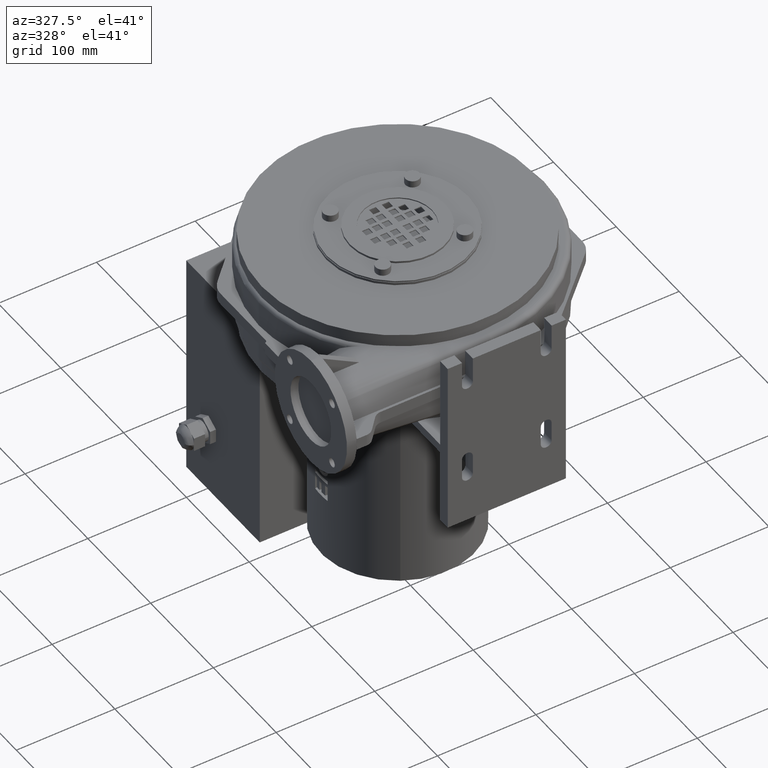
[diagram: clean part render]
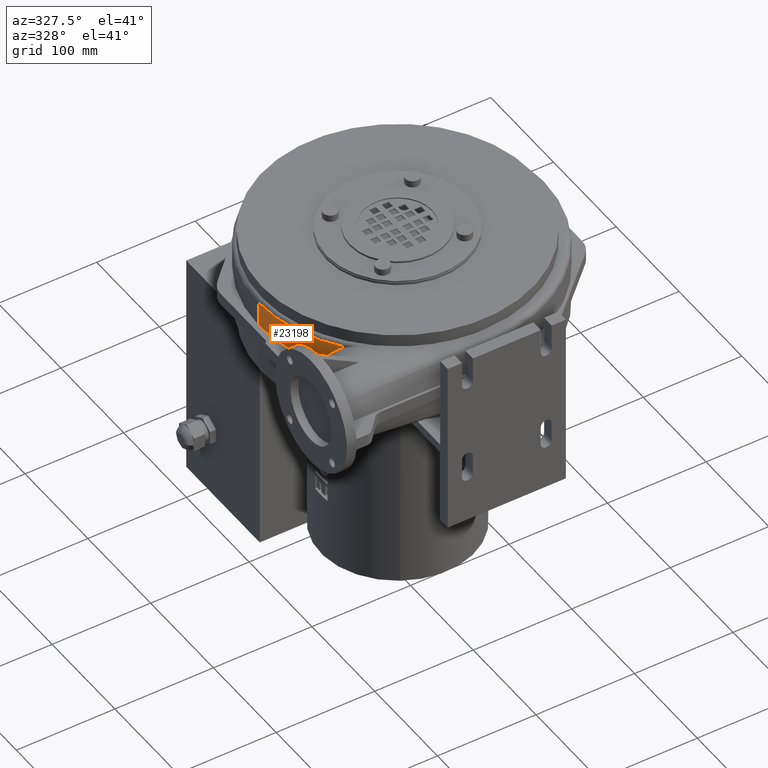
[diagram: same view with one face highlighted and labeled with its STEP entity id]
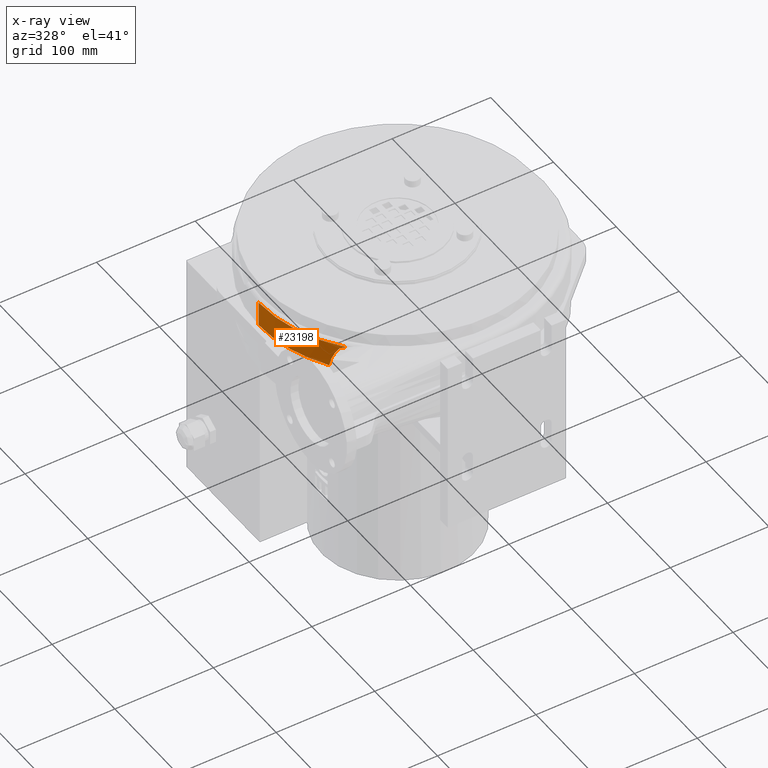
[diagram: x-ray of the same camera — body ghosted, the highlighted face saturated]
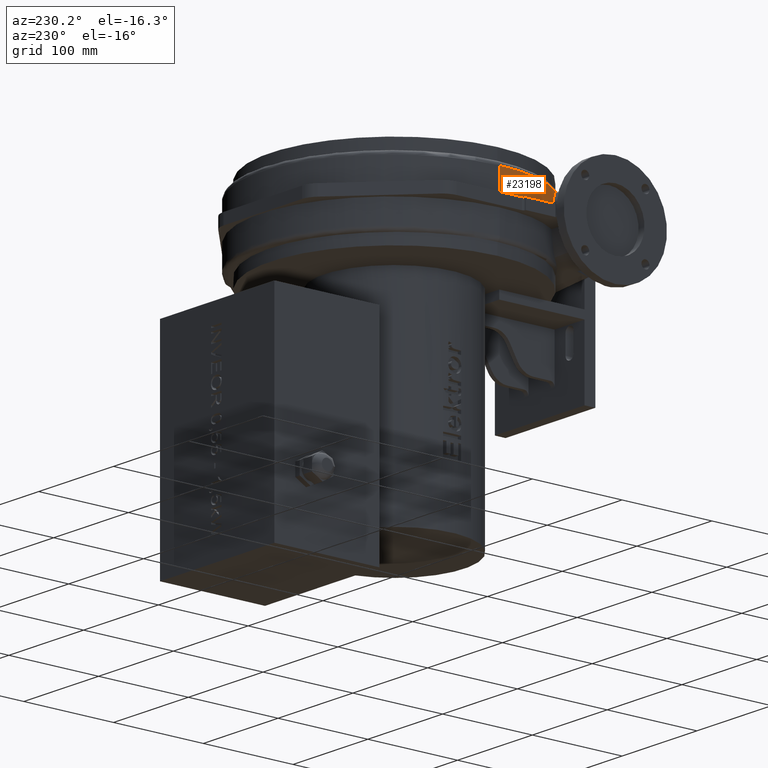
[diagram: same view with one face highlighted and labeled with its STEP entity id]
A machine part, auxiliary view. The second image highlights one B-rep face of the part: STEP entity #23198.
The next image is the same camera in x-ray: the body ghosted, the highlighted face saturated — about 1% of this face is hidden behind the body in this view.
A second angle (auxiliary view) of the same face is appended — the face is thin or edge-on in the first view.
In plain terms, the highlighted cylindrical surface (partial cylindrical patch) has radius 141 mm, axis along (-0, -0, 1).
Its self-contained STEP definition (entity closure, byte-faithful):
#22512=CARTESIAN_POINT('',(-140.99999999999994,120.50000000000009,75.499999999999986));
#22513=VERTEX_POINT('',#22512);
#22546=CARTESIAN_POINT('',(-109.10888931496358,31.19014459503914,75.499999999999986));
#22547=VERTEX_POINT('',#22546);
#22548=CARTESIAN_POINT('',(-6.065097E-015,120.50000000000006,75.5));
#22549=DIRECTION('',(-6.123234E-017,-6.123234E-017,1.0));
#22550=DIRECTION('',(-0.707106781186548,-0.707106781186547,-8.659561E-017));
#22551=AXIS2_PLACEMENT_3D('',#22548,#22549,#22550);
#22552=CIRCLE('',#22551,140.99999999999997);
#22553=EDGE_CURVE('',#22513,#22547,#22552,.T.);
#23116=CARTESIAN_POINT('',(-118.28443662424512,43.755019366183191,49.999999999999986));
#23117=VERTEX_POINT('',#23116);
#23139=CARTESIAN_POINT('',(-112.8247713455813,35.93303853858005,72.607534993733324));
#23140=VERTEX_POINT('',#23139);
#23148=CARTESIAN_POINT('',(-118.28443662424516,43.755019366183177,49.999999999999957));
#23149=CARTESIAN_POINT('',(-118.27142784442083,43.734969883910175,50.17164714293115));
#23150=CARTESIAN_POINT('',(-118.25785201521866,43.714053013321589,50.343274429664831));
#23151=CARTESIAN_POINT('',(-118.24370712188912,43.692270034898584,50.51487780565482));
#23152=CARTESIAN_POINT('',(-117.96980915330222,43.270470209277249,53.837760134371742));
#23153=CARTESIAN_POINT('',(-117.49069454630083,42.53547664289443,57.072049217894815));
#23154=CARTESIAN_POINT('',(-116.8126169381223,41.532596323777526,60.198562296064665));
#23155=CARTESIAN_POINT('',(-116.67393862516693,41.327490375617877,60.837986978260254));
#23156=CARTESIAN_POINT('',(-116.52693825654438,41.111122047307049,61.472914520911431));
#23157=CARTESIAN_POINT('',(-116.37166932810864,40.883995864615002,62.10328809590937));
#23158=CARTESIAN_POINT('',(-115.45446248983099,39.542312824641819,65.827039908216932));
#23159=CARTESIAN_POINT('',(-114.26482346766645,37.854279985502572,69.323182355044835));
#23160=CARTESIAN_POINT('',(-112.82477134558127,35.933038538580064,72.607534993733339));
#23161=B_SPLINE_CURVE_WITH_KNOTS('',3,(#23148,#23149,#23150,#23151,#23152,#23153,#23154,#23155,#23156,#23157,#23158,#23159,#23160),.UNSPECIFIED.,.F.,.U.,(4,3,3,3,4),(4.417819588287765,4.48381965184414,5.761827404433253,6.023201555319949,7.567194683613551),.UNSPECIFIED.);
#23162=EDGE_CURVE('',#23117,#23140,#23161,.T.);
#23167=CARTESIAN_POINT('',(-2.207459E-015,120.50000000000006,43.999999999999993));
#23168=DIRECTION('',(-1.224647E-016,-1.513340E-030,1.0));
#23169=DIRECTION('',(-1.0,0.0,0.0));
#23170=AXIS2_PLACEMENT_3D('',#23167,#23168,#23169);
#23171=CYLINDRICAL_SURFACE('',#23170,141.0);
#23172=CARTESIAN_POINT('',(-140.99999999999994,120.50000000000009,49.999999999999986));
#23173=VERTEX_POINT('',#23172);
#23174=CARTESIAN_POINT('',(-2.942247E-015,120.50000000000006,50.0));
#23175=DIRECTION('',(0.0,0.0,1.0));
#23176=DIRECTION('',(-1.0,0.0,0.0));
#23177=AXIS2_PLACEMENT_3D('',#23174,#23175,#23176);
#23178=CIRCLE('',#23177,141.0);
#23179=EDGE_CURVE('',#23173,#23117,#23178,.T.);
#23180=ORIENTED_EDGE('',*,*,#23179,.T.);
#23181=ORIENTED_EDGE('',*,*,#23162,.T.);
#23182=CARTESIAN_POINT('',(-112.82477134558128,35.933038538580043,72.607534993733339));
#23183=CARTESIAN_POINT('',(-111.66249897036661,34.382396151662718,73.713556008418067));
#23184=CARTESIAN_POINT('',(-110.42177318355714,32.794080689798733,74.671764821297714));
#23185=CARTESIAN_POINT('',(-109.10888931496358,31.19014459503915,75.5));
#23186=B_SPLINE_CURVE_WITH_KNOTS('',3,(#23182,#23183,#23184,#23185),.UNSPECIFIED.,.F.,.U.,(4,4),(0.0,0.669386751743298),.UNSPECIFIED.);
#23187=EDGE_CURVE('',#23140,#22547,#23186,.T.);
#23188=ORIENTED_EDGE('',*,*,#23187,.T.);
#23189=ORIENTED_EDGE('',*,*,#22553,.F.);
#23190=CARTESIAN_POINT('',(-140.99999999999994,120.50000000000009,49.999999999999979));
#23191=DIRECTION('',(0.0,0.0,1.0));
#23192=VECTOR('',#23191,25.500000000000007);
#23193=LINE('',#23190,#23192);
#23194=EDGE_CURVE('',#23173,#22513,#23193,.T.);
#23195=ORIENTED_EDGE('',*,*,#23194,.F.);
#23196=EDGE_LOOP('',(#23180,#23181,#23188,#23189,#23195));
#23197=FACE_OUTER_BOUND('',#23196,.T.);
#23198=ADVANCED_FACE('',(#23197),#23171,.T.);